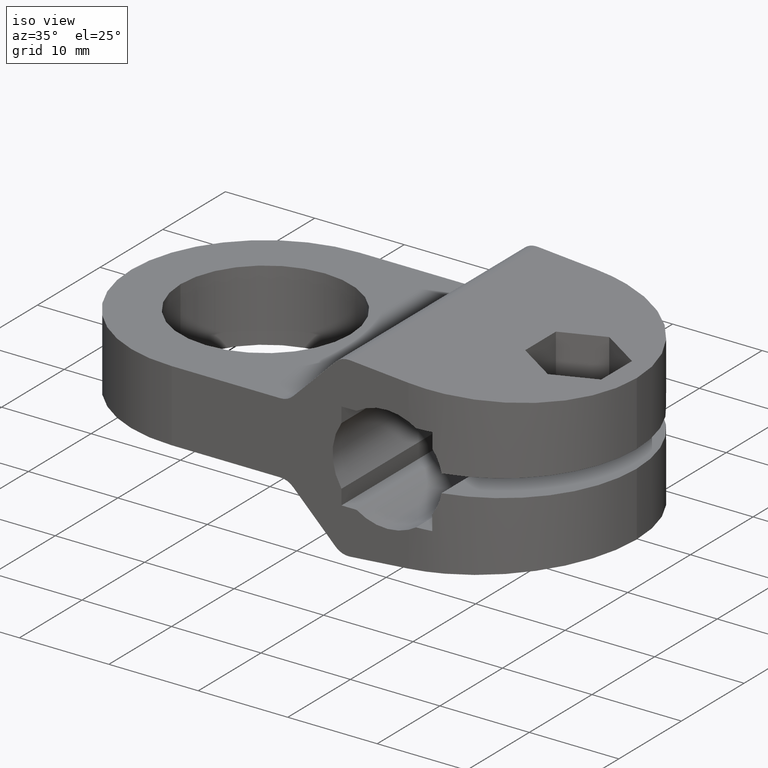
[diagram: clean part render]
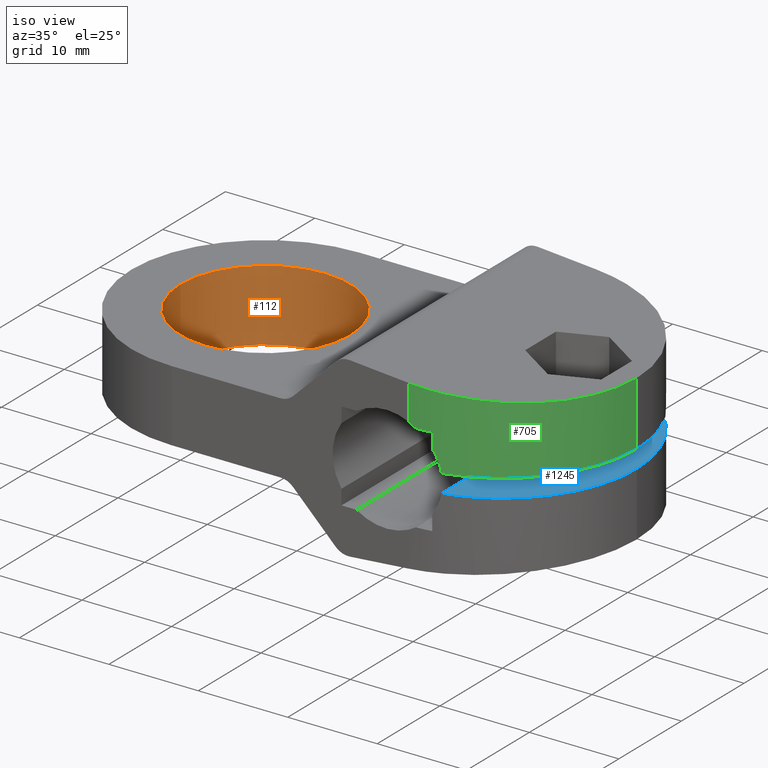
[diagram: same view with three faces highlighted in distinct colors, each labeled with its STEP entity id]
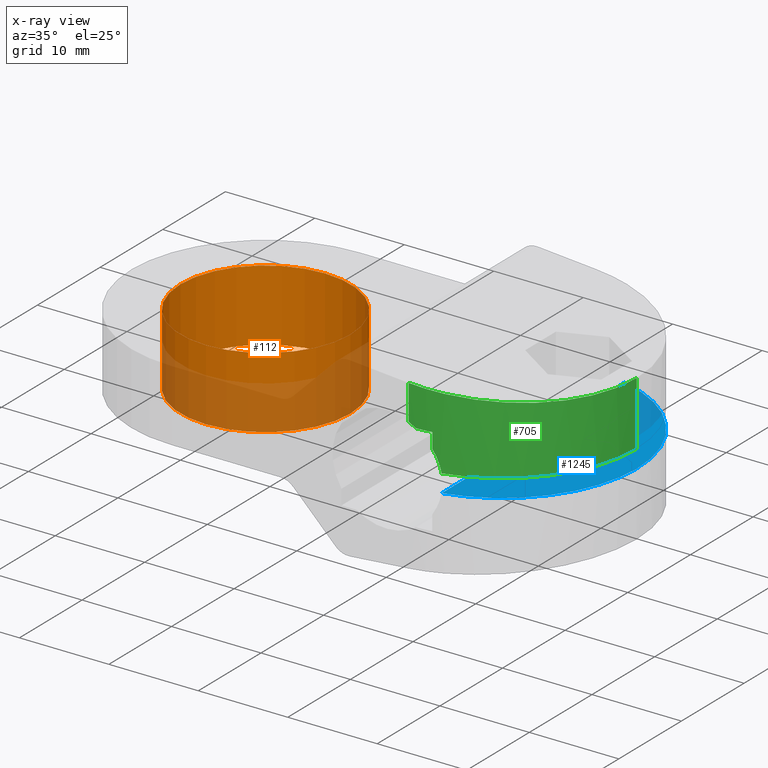
[diagram: x-ray of the same camera — body ghosted, the three highlighted faces saturated]
A machine part, iso view with three faces highlighted in distinct colors.
The next image is the same camera in x-ray (body ghosted, the three faces saturated) — at least one of them is partly hidden behind the body in this view.
Their STEP definitions:

[orange] entity #112 — the highlighted cylindrical surface (bore or boss wall) has radius 9.5 mm, axis along (-0, 0, 1).
#62=CARTESIAN_POINT('',(-24.0,-15.000000000000007,4.000000000000007));
#63=DIRECTION('',(-2.537653E-016,0.0,1.0));
#64=DIRECTION('',(-1.0,0.0,-2.537653E-016));
#65=AXIS2_PLACEMENT_3D('',#62,#63,#64);
#66=CYLINDRICAL_SURFACE('',#65,9.500000000000000);
#67=CARTESIAN_POINT('',(-33.500000000000000,-15.000000000000007,4.000000000000007));
#68=VERTEX_POINT('',#67);
#69=CARTESIAN_POINT('',(-33.500000000000000,-15.000000000000007,-4.000000000000007));
#70=VERTEX_POINT('',#69);
#71=CARTESIAN_POINT('',(-33.500000000000000,-15.000000000000007,4.000000000000007));
#72=DIRECTION('',(0.0,0.0,-1.0));
#73=VECTOR('',#72,8.000000000000014);
#74=LINE('',#71,#73);
#75=EDGE_CURVE('',#68,#70,#74,.T.);
#76=ORIENTED_EDGE('',*,*,#75,.T.);
#77=CARTESIAN_POINT('',(-14.499999999999998,-15.000000000000007,-4.000000000000004));
#78=VERTEX_POINT('',#77);
#79=CARTESIAN_POINT('',(-24.0,-15.000000000000007,-4.000000000000007));
#80=DIRECTION('',(-2.537653E-016,0.0,1.0));
#81=DIRECTION('',(-1.0,0.0,-2.537653E-016));
#82=AXIS2_PLACEMENT_3D('',#79,#80,#81);
#83=CIRCLE('',#82,9.500000000000000);
#84=EDGE_CURVE('',#78,#70,#83,.T.);
#85=ORIENTED_EDGE('',*,*,#84,.F.);
#86=CARTESIAN_POINT('',(-24.0,-15.000000000000007,-4.000000000000007));
#87=DIRECTION('',(-2.537653E-016,0.0,1.0));
#88=DIRECTION('',(-1.0,0.0,-2.537653E-016));
#89=AXIS2_PLACEMENT_3D('',#86,#87,#88);
#90=CIRCLE('',#89,9.500000000000000);
#91=EDGE_CURVE('',#70,#78,#90,.T.);
#92=ORIENTED_EDGE('',*,*,#91,.F.);
#93=ORIENTED_EDGE('',*,*,#75,.F.);
#94=CARTESIAN_POINT('',(-14.500000000000002,-15.000000000000007,4.000000000000010));
#95=VERTEX_POINT('',#94);
#96=CARTESIAN_POINT('',(-24.0,-15.000000000000007,4.000000000000007));
#97=DIRECTION('',(-2.537653E-016,0.0,1.0));
#98=DIRECTION('',(-1.0,0.0,-2.537653E-016));
#99=AXIS2_PLACEMENT_3D('',#96,#97,#98);
#100=CIRCLE('',#99,9.500000000000000);
#101=EDGE_CURVE('',#68,#95,#100,.T.);
#102=ORIENTED_EDGE('',*,*,#101,.T.);
#103=CARTESIAN_POINT('',(-24.0,-15.000000000000007,4.000000000000007));
#104=DIRECTION('',(-2.537653E-016,0.0,1.0));
#105=DIRECTION('',(-1.0,0.0,-2.537653E-016));
#106=AXIS2_PLACEMENT_3D('',#103,#104,#105);
#107=CIRCLE('',#106,9.500000000000000);
#108=EDGE_CURVE('',#95,#68,#107,.T.);
#109=ORIENTED_EDGE('',*,*,#108,.T.);
#110=EDGE_LOOP('',(#76,#85,#92,#93,#102,#109));
#111=FACE_OUTER_BOUND('',#110,.T.);
#112=ADVANCED_FACE('',(#111),#66,.F.);

[blue] entity #1245 — the highlighted planar face has unit normal (0, 0, -1).
#722=CARTESIAN_POINT('',(17.500000000000000,-15.0,-0.999999999999993));
#723=VERTEX_POINT('',#722);
#730=CARTESIAN_POINT('',(5.916079783099633,-29.605834413531397,-1.0));
#731=VERTEX_POINT('',#730);
#732=CARTESIAN_POINT('',(2.500000000000000,-15.0,-1.0));
#733=DIRECTION('',(-2.368476E-016,-3.786196E-016,-1.0));
#734=DIRECTION('',(1.0,0.0,-2.368476E-016));
#735=AXIS2_PLACEMENT_3D('',#732,#733,#734);
#736=CIRCLE('',#735,15.0);
#737=EDGE_CURVE('',#723,#731,#736,.T.);
#909=CARTESIAN_POINT('',(5.916079783099633,-0.394165586468617,-1.0));
#910=VERTEX_POINT('',#909);
#921=CARTESIAN_POINT('',(2.500000000000000,-15.0,-1.0));
#922=DIRECTION('',(0.0,0.0,1.0));
#923=DIRECTION('',(1.0,0.0,0.0));
#924=AXIS2_PLACEMENT_3D('',#921,#922,#923);
#925=CIRCLE('',#924,15.0);
#926=EDGE_CURVE('',#723,#910,#925,.T.);
#1157=CARTESIAN_POINT('',(5.916079783099633,-0.394165586468617,-1.0));
#1158=DIRECTION('',(0.0,-1.0,0.0));
#1159=VECTOR('',#1158,29.211668827062780);
#1160=LINE('',#1157,#1159);
#1161=EDGE_CURVE('',#910,#731,#1160,.T.);
#1215=CARTESIAN_POINT('',(0.0,0.0,-1.0));
#1216=DIRECTION('',(0.0,0.0,-1.0));
#1217=DIRECTION('',(1.0,0.0,0.0));
#1218=AXIS2_PLACEMENT_3D('',#1215,#1216,#1217);
#1219=PLANE('',#1218);
#1220=ORIENTED_EDGE('',*,*,#926,.T.);
#1221=ORIENTED_EDGE('',*,*,#1161,.T.);
#1222=ORIENTED_EDGE('',*,*,#737,.F.);
#1223=EDGE_LOOP('',(#1220,#1221,#1222));
#1224=FACE_OUTER_BOUND('',#1223,.T.);
#1225=CARTESIAN_POINT('',(8.249972875253775,-15.000000000000014,-1.0));
#1226=VERTEX_POINT('',#1225);
#1227=CARTESIAN_POINT('',(13.749972875253775,-15.000000000000014,-0.999999999999992));
#1228=VERTEX_POINT('',#1227);
#1229=CARTESIAN_POINT('',(10.999972875253775,-15.000000000000014,-0.999999999999993));
#1230=DIRECTION('',(2.537653E-016,0.0,-1.0));
#1231=DIRECTION('',(-1.0,0.0,-2.537653E-016));
#1232=AXIS2_PLACEMENT_3D('',#1229,#1230,#1231);
#1233=CIRCLE('',#1232,2.750000000000000);
#1234=EDGE_CURVE('',#1226,#1228,#1233,.T.);
#1235=ORIENTED_EDGE('',*,*,#1234,.T.);
#1236=CARTESIAN_POINT('',(10.999972875253775,-15.000000000000014,-0.999999999999993));
#1237=DIRECTION('',(2.537653E-016,0.0,-1.0));
#1238=DIRECTION('',(-1.0,0.0,-2.537653E-016));
#1239=AXIS2_PLACEMENT_3D('',#1236,#1237,#1238);
#1240=CIRCLE('',#1239,2.750000000000000);
#1241=EDGE_CURVE('',#1228,#1226,#1240,.T.);
#1242=ORIENTED_EDGE('',*,*,#1241,.T.);
#1243=EDGE_LOOP('',(#1235,#1242));
#1244=FACE_BOUND('',#1243,.T.);
#1245=ADVANCED_FACE('',(#1224,#1244),#1219,.F.);

[green] entity #705 — the highlighted cylindrical surface (partial cylindrical patch) has radius 15 mm, axis along (-0, -0, -1).
#550=CARTESIAN_POINT('',(2.500000000000000,-29.999999999999993,9.383333333333340));
#551=VERTEX_POINT('',#550);
#558=CARTESIAN_POINT('',(17.500000000000000,-15.0,8.149999999999999));
#559=VERTEX_POINT('',#558);
#560=CARTESIAN_POINT('',(2.500000000000000,-14.999999999999993,9.383333333333342));
#561=DIRECTION('',(-0.081945692132050,0.0,-0.996636796200602));
#562=DIRECTION('',(-0.996636796200602,4.620372E-015,0.081945692132050));
#563=AXIS2_PLACEMENT_3D('',#560,#561,#562);
#564=ELLIPSE('',#563,15.050618296638550,15.0);
#565=EDGE_CURVE('',#559,#551,#564,.T.);
#636=CARTESIAN_POINT('',(2.500000000000000,-15.0,-9.383333333333333));
#637=DIRECTION('',(-2.368476E-016,-3.786196E-016,-1.0));
#638=DIRECTION('',(1.0,0.0,-2.368476E-016));
#639=AXIS2_PLACEMENT_3D('',#636,#637,#638);
#640=CYLINDRICAL_SURFACE('',#639,15.0);
#641=CARTESIAN_POINT('',(5.916079783099633,-29.605834413531369,1.0));
#642=VERTEX_POINT('',#641);
#643=CARTESIAN_POINT('',(17.500000000000000,-15.0,1.000000000000007));
#644=VERTEX_POINT('',#643);
#645=CARTESIAN_POINT('',(2.500000000000000,-14.999999999999993,1.0));
#646=DIRECTION('',(2.368476E-016,3.786196E-016,1.0));
#647=DIRECTION('',(1.0,0.0,-2.368476E-016));
#648=AXIS2_PLACEMENT_3D('',#645,#646,#647);
#649=CIRCLE('',#648,15.0);
#650=EDGE_CURVE('',#642,#644,#649,.T.);
#651=ORIENTED_EDGE('',*,*,#650,.T.);
#652=CARTESIAN_POINT('',(17.500000000000000,-15.0,1.000000000000005));
#653=DIRECTION('',(0.0,0.0,1.0));
#654=VECTOR('',#653,7.149999999999993);
#655=LINE('',#652,#654);
#656=EDGE_CURVE('',#644,#559,#655,.T.);
#657=ORIENTED_EDGE('',*,*,#656,.T.);
#658=ORIENTED_EDGE('',*,*,#565,.T.);
#659=CARTESIAN_POINT('',(2.500000000000057,-29.999999999999993,5.454356057317867));
#660=VERTEX_POINT('',#659);
#661=CARTESIAN_POINT('',(2.500000000000000,-29.999999999999993,5.454356057317867));
#662=DIRECTION('',(0.0,0.0,1.0));
#663=VECTOR('',#662,3.928977276015473);
#664=LINE('',#661,#663);
#665=EDGE_CURVE('',#660,#551,#664,.T.);
#666=ORIENTED_EDGE('',*,*,#665,.F.);
#667=CARTESIAN_POINT('',(3.316624790355434,-29.977754302690933,4.999999999999993));
#668=VERTEX_POINT('',#667);
#669=CARTESIAN_POINT('',(3.316624790355434,-29.977754302690933,4.999999999999993));
#670=CARTESIAN_POINT('',(3.184023857030581,-29.984984038683990,5.087957508537869));
#671=CARTESIAN_POINT('',(2.917331047808830,-29.996060982686416,5.249976403443846));
#672=CARTESIAN_POINT('',(2.638689968098277,-29.999999999999993,5.390787614663566));
#673=CARTESIAN_POINT('',(2.500000000000000,-29.999999999999993,5.454356057317860));
#674=B_SPLINE_CURVE_WITH_KNOTS('',3,(#669,#670,#671,#672,#673),.UNSPECIFIED.,.F.,.U.,(4,1,4),(0.0,0.477982732125250,0.935789746791569),.UNSPECIFIED.);
#675=EDGE_CURVE('',#668,#660,#674,.T.);
#676=ORIENTED_EDGE('',*,*,#675,.F.);
#677=CARTESIAN_POINT('',(5.0,-29.790199457749033,5.0));
#678=VERTEX_POINT('',#677);
#679=CARTESIAN_POINT('',(2.500000000000000,-14.999999999999993,4.999999999999993));
#680=DIRECTION('',(-2.368476E-016,-3.786196E-016,-1.0));
#681=DIRECTION('',(1.0,0.0,-2.368476E-016));
#682=AXIS2_PLACEMENT_3D('',#679,#680,#681);
#683=CIRCLE('',#682,15.0);
#684=EDGE_CURVE('',#678,#668,#683,.T.);
#685=ORIENTED_EDGE('',*,*,#684,.F.);
#686=CARTESIAN_POINT('',(5.0,-29.790199457749033,3.316624790355398));
#687=VERTEX_POINT('',#686);
#688=CARTESIAN_POINT('',(5.000000000000003,-29.790199457749036,3.316624790355398));
#689=DIRECTION('',(0.0,0.0,1.0));
#690=VECTOR('',#689,1.683375209644595);
#691=LINE('',#688,#690);
#692=EDGE_CURVE('',#687,#678,#691,.T.);
#693=ORIENTED_EDGE('',*,*,#692,.F.);
#694=CARTESIAN_POINT('',(5.916072006780704,-29.605839176869225,0.999998498338388));
#695=CARTESIAN_POINT('',(5.910914112473924,-29.607044053725438,1.030530454699249));
#696=CARTESIAN_POINT('',(5.843776166652202,-29.622697003009968,1.410028371825064));
#697=CARTESIAN_POINT('',(5.618403319036815,-29.674302254470916,2.219616134239601));
#698=CARTESIAN_POINT('',(5.248848662081684,-29.748136356640664,2.941471316852258));
#699=CARTESIAN_POINT('',(5.0,-29.790199457749033,3.316624790355391));
#700=B_SPLINE_CURVE_WITH_KNOTS('',3,(#694,#695,#696,#697,#698,#699),.UNSPECIFIED.,.F.,.U.,(4,1,1,4),(4.526345466361298,4.619316428995020,5.683545606278605,7.042842935235542),.UNSPECIFIED.);
#701=EDGE_CURVE('',#642,#687,#700,.T.);
#702=ORIENTED_EDGE('',*,*,#701,.F.);
#703=EDGE_LOOP('',(#651,#657,#658,#666,#676,#685,#693,#702));
#704=FACE_OUTER_BOUND('',#703,.T.);
#705=ADVANCED_FACE('',(#704),#640,.T.);